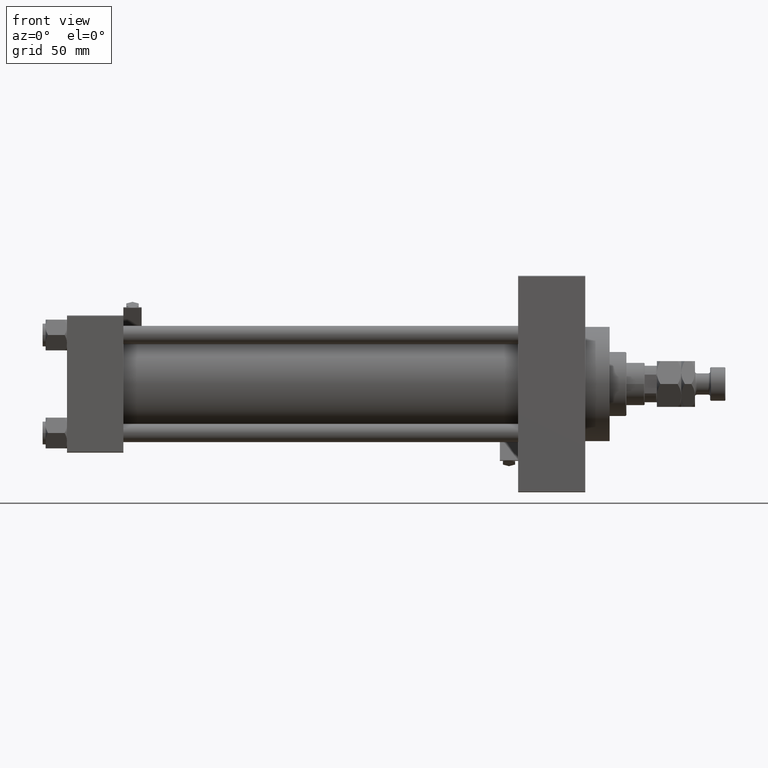
[diagram: clean part render]
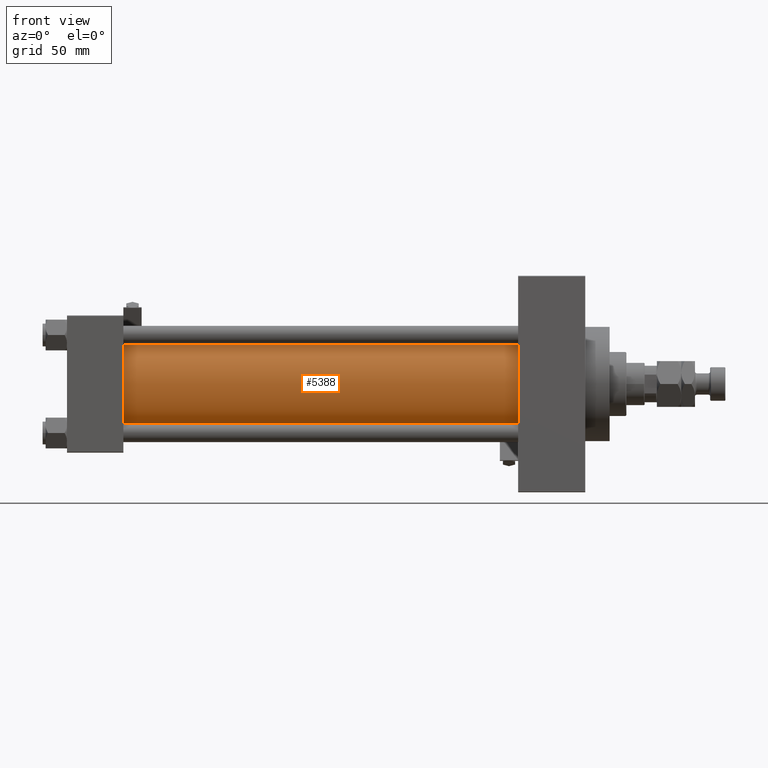
[diagram: same view with one face highlighted and labeled with its STEP entity id]
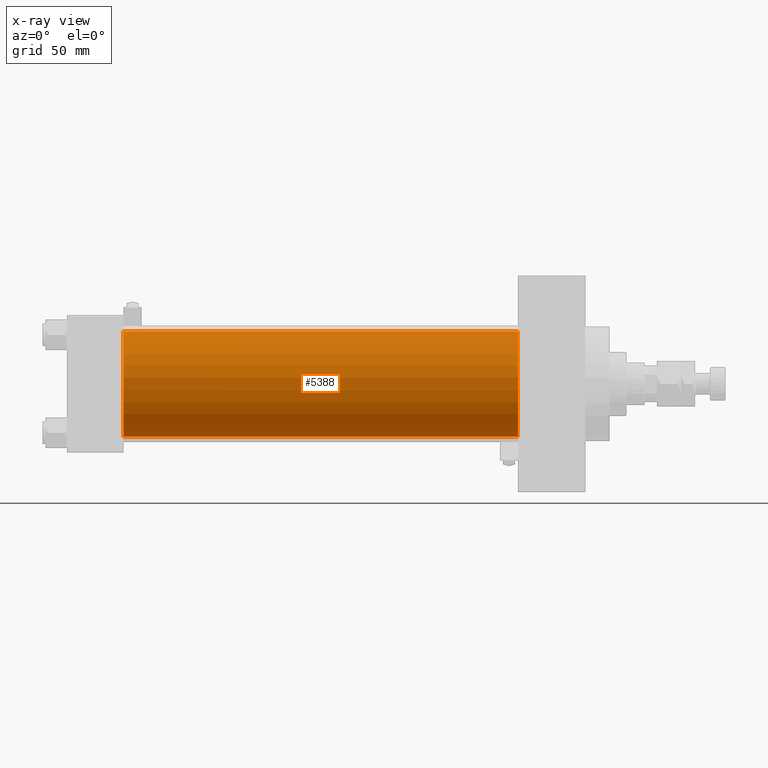
[diagram: x-ray of the same camera — body ghosted, the highlighted face saturated]
A machine part, front view. The second image highlights one B-rep face of the part: STEP entity #5388.
The next image is the same camera in x-ray: the body ghosted, the highlighted face saturated — about 0% of this face is hidden behind the body in this view.
In plain terms, the highlighted cylindrical surface (partial cylindrical patch) has radius 34.5 mm, axis along (-1, -0, -0).
Its self-contained STEP definition (entity closure, byte-faithful):
#926 = EDGE_LOOP ( 'NONE', ( #39240, #46792, #50096, #10290 ) ) ;
#1309 = VERTEX_POINT ( 'NONE', #15690 ) ;
#4451 = CYLINDRICAL_SURFACE ( 'NONE', #39147, 34.50000000000000000 ) ;
#5388 = ADVANCED_FACE ( 'NONE', ( #16549 ), #4451, .T. ) ;
#5972 = DIRECTION ( 'NONE',  ( 1.000000000000000000, -0.000000000000000000, 0.000000000000000000 ) ) ;
#6357 = VERTEX_POINT ( 'NONE', #44846 ) ;
#7886 = DIRECTION ( 'NONE',  ( 0.000000000000000000, 0.000000000000000000, 1.000000000000000000 ) ) ;
#8706 = VECTOR ( 'NONE', #12652, 1000.000000000000000 ) ;
#10290 = ORIENTED_EDGE ( 'NONE', *, *, #11901, .T. ) ;
#11901 = EDGE_CURVE ( 'NONE', #43708, #16373, #34395, .T. ) ;
#12463 = EDGE_CURVE ( 'NONE', #6357, #16373, #41302, .T. ) ;
#12652 = DIRECTION ( 'NONE',  ( -1.000000000000000000, -0.000000000000000000, -0.000000000000000000 ) ) ;
#15690 = CARTESIAN_POINT ( 'NONE',  ( 296.0000000000000000, -2.602085213965210642E-15, 34.50000000000000000 ) ) ;
#16373 = VERTEX_POINT ( 'NONE', #30887 ) ;
#16549 = FACE_OUTER_BOUND ( 'NONE', #926, .T. ) ;
#21062 = LINE ( 'NONE', #37118, #8706 ) ;
#28618 = DIRECTION ( 'NONE',  ( 0.000000000000000000, 0.000000000000000000, -1.000000000000000000 ) ) ;
#29039 = AXIS2_PLACEMENT_3D ( 'NONE', #32325, #44412, #28618 ) ;
#30887 = CARTESIAN_POINT ( 'NONE',  ( 36.99999999999997868, 1.622946243093158675E-15, -34.50000000000000000 ) ) ;
#31874 = AXIS2_PLACEMENT_3D ( 'NONE', #33613, #5972, #49648 ) ;
#32325 = CARTESIAN_POINT ( 'NONE',  ( 296.0000000000000000, -2.602085213965210642E-15, 0.000000000000000000 ) ) ;
#32441 = CIRCLE ( 'NONE', #29039, 34.50000000000000000 ) ;
#33613 = CARTESIAN_POINT ( 'NONE',  ( 36.99999999999997868, -2.602085213965210642E-15, 0.000000000000000000 ) ) ;
#34395 = CIRCLE ( 'NONE', #31874, 34.50000000000000000 ) ;
#34987 = CARTESIAN_POINT ( 'NONE',  ( 36.99999999999997868, -2.602085213965210642E-15, 34.50000000000000000 ) ) ;
#37118 = CARTESIAN_POINT ( 'NONE',  ( 296.0000000000000000, -2.602085213965210642E-15, 34.50000000000000000 ) ) ;
#37356 = DIRECTION ( 'NONE',  ( -1.000000000000000000, -0.000000000000000000, -0.000000000000000000 ) ) ;
#37754 = EDGE_CURVE ( 'NONE', #1309, #43708, #21062, .T. ) ;
#39147 = AXIS2_PLACEMENT_3D ( 'NONE', #43928, #48640, #7886 ) ;
#39240 = ORIENTED_EDGE ( 'NONE', *, *, #12463, .F. ) ;
#40268 = VECTOR ( 'NONE', #37356, 1000.000000000000000 ) ;
#41302 = LINE ( 'NONE', #44976, #40268 ) ;
#43708 = VERTEX_POINT ( 'NONE', #34987 ) ;
#43928 = CARTESIAN_POINT ( 'NONE',  ( 296.0000000000000000, -2.602085213965210642E-15, 0.000000000000000000 ) ) ;
#44412 = DIRECTION ( 'NONE',  ( 1.000000000000000000, 0.000000000000000000, 0.000000000000000000 ) ) ;
#44846 = CARTESIAN_POINT ( 'NONE',  ( 296.0000000000000000, 1.622946243093158675E-15, -34.50000000000000000 ) ) ;
#44976 = CARTESIAN_POINT ( 'NONE',  ( 296.0000000000000000, 1.622946243093158675E-15, -34.50000000000000000 ) ) ;
#46005 = EDGE_CURVE ( 'NONE', #1309, #6357, #32441, .T. ) ;
#46792 = ORIENTED_EDGE ( 'NONE', *, *, #46005, .F. ) ;
#48640 = DIRECTION ( 'NONE',  ( -1.000000000000000000, -0.000000000000000000, -0.000000000000000000 ) ) ;
#49648 = DIRECTION ( 'NONE',  ( 0.000000000000000000, 0.000000000000000000, 1.000000000000000000 ) ) ;
#50096 = ORIENTED_EDGE ( 'NONE', *, *, #37754, .T. ) ;